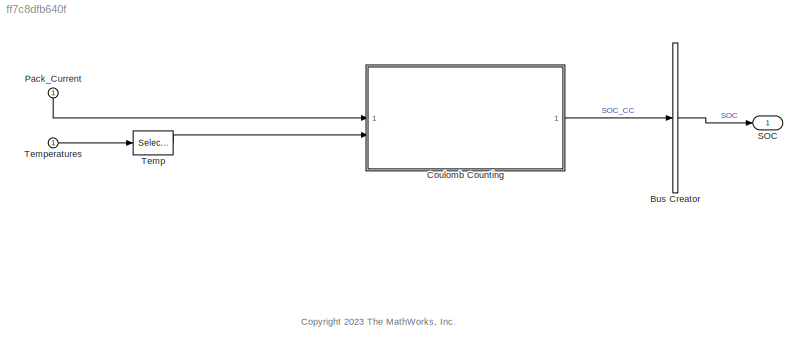
MODEL slx_ff7c8dfb640f
KIND model
CONFIG AbsTol = auto
CONFIG EnableMultiTasking = off
CONFIG FixedStep = auto
CONFIG MaxStep = auto
CONFIG MinStep = auto
CONFIG RelTol = 1e-3
CONFIG SampleTimeConstraint = Unconstrained
CONFIG SolverName = FixedStepDiscrete
CONFIG StartTime = 0.0
CONFIG StopTime = 10000
WORKSPACE source: mxarray member
WORKSPACE Active_Scenario_Index: Simulink.Parameter (value not decoded)
WORKSPACE BattTempInit: Simulink.Parameter (value not decoded)
WORKSPACE Battery: object (value not decoded)
WORKSPACE CellType: Simulink.Parameter (value not decoded)
WORKSPACE Np_Module: Simulink.Parameter (value not decoded)
WORKSPACE Ns_Module: Simulink.Parameter (value not decoded)
WORKSPACE NumModules: Simulink.Parameter (value not decoded)
WORKSPACE OverCellVoltageLimit: Simulink.Parameter (value not decoded)
WORKSPACE SOCInit: Simulink.Parameter (value not decoded)
WORKSPACE TestCase: Simulink.Parameter (value not decoded)
WORKSPACE Ts: Simulink.Parameter (value not decoded)
WORKSPACE UnderCellVoltageLimit: Simulink.Parameter (value not decoded)
WORKSPACE ts: Simulink.Parameter (value not decoded)
BLOCK [BusCreator] Bus Creator
  DisplayOption = bar
  InheritFromInputs = on
  Inputs = 1
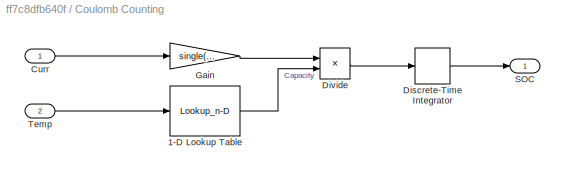
BLOCK [SubSystem] Coulomb Counting
  VariantControl = SocAlgo==1
BLOCK [Lookup_n-D] Coulomb Counting/1-D Lookup Table
  BreakpointsForDimension1 = single(Battery(1).Temperature_LUT)
  InputPortMap = u0
  InternalRulePriority = Speed
  NumberOfTableDimensions = 1
  RndMeth = Simplest
  Table = single(Battery(1).Capacity_LUT)*Np_Module
BLOCK [Inport] Coulomb Counting/Curr
BLOCK [DiscreteIntegrator] Coulomb Counting/Discrete-Time Integrator
  ICPrevOutput = DiscIntNeverNeededParam
  ICPrevScaledInput = DiscIntNeverNeededParam
  InitialCondition = single(BattSocInit)
  InitialConditionSetting = Auto
  LimitOutput = on
  LowerSaturationLimit = 0
  SampleTime = -1
  UpperSaturationLimit = 1
BLOCK [Product] Coulomb Counting/Divide
  Inputs = */
  NameLocation = top
BLOCK [Gain] Coulomb Counting/Gain
  Gain = single(1/3600)
BLOCK [Outport] Coulomb Counting/SOC
  VectorParamsAs1DForOutWhenUnconnected = off
BLOCK [Inport] Coulomb Counting/Temp
  Port = 2
BLOCK [Inport] Pack_Current
BLOCK [Outport] SOC
  OutDataTypeStr = Bus: SOC_Est
  SampleTime = [0.10000000000000001,0]
  SamplingMode = Sample based
  SignalType = real
  VectorParamsAs1DForOutWhenUnconnected = off
BLOCK [Selector] Temp
  IndexOptions = Index vector (dialog)
  Indices = 1
  InputPortWidth = Ns_Module*NumModules
  OutputSizes = 1
BLOCK [Inport] Temperatures
ANNOTATION (root): <copyright redacted>
LINE Bus Creator:1 -> SOC:1
LINE Coulomb Counting/1-D Lookup Table:1 -> Coulomb Counting/Divide:2
LINE Coulomb Counting/Curr:1 -> Coulomb Counting/Gain:1
LINE Coulomb Counting/Discrete-Time Integrator:1 -> Coulomb Counting/SOC:1
LINE Coulomb Counting/Divide:1 -> Coulomb Counting/Discrete-Time Integrator:1
LINE Coulomb Counting/Gain:1 -> Coulomb Counting/Divide:1
LINE Coulomb Counting/Temp:1 -> Coulomb Counting/1-D Lookup Table:1
LINE Coulomb Counting:1 -> Bus Creator:1
LINE Pack_Current:1 -> Coulomb Counting:1
LINE Temp:1 -> Coulomb Counting:2
LINE Temperatures:1 -> Temp:1
